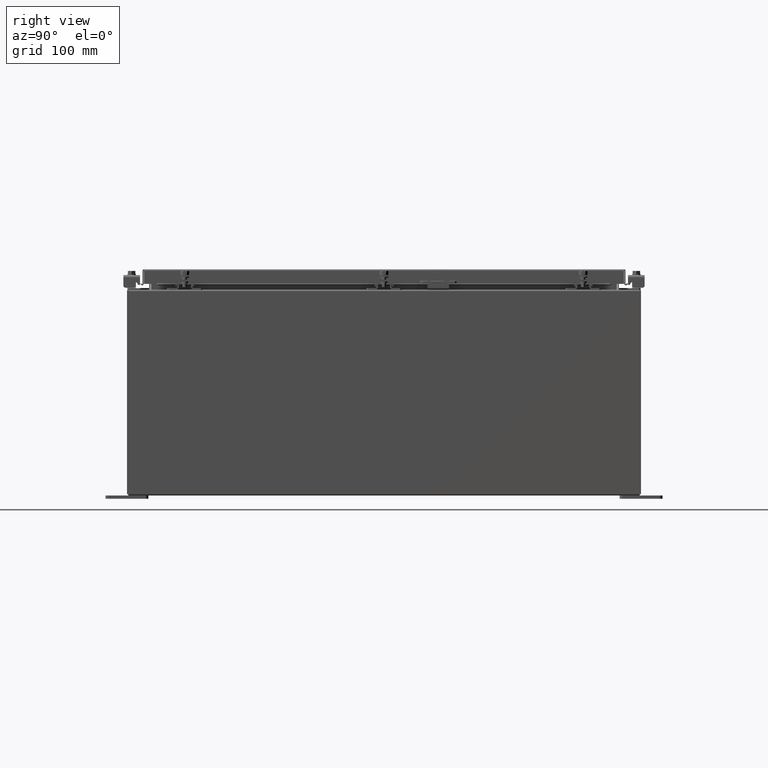
[diagram: clean part render]
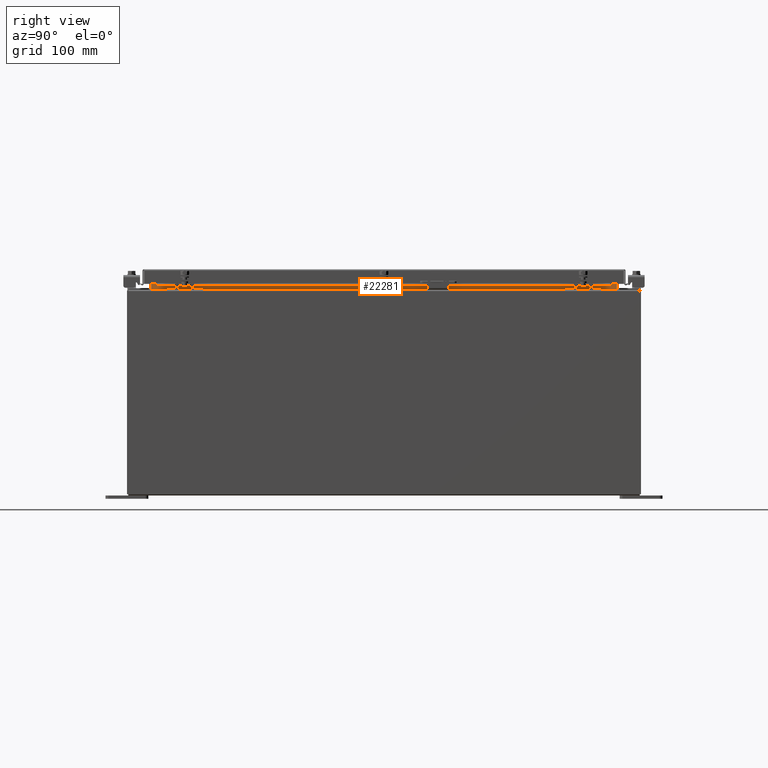
[diagram: same view with one face highlighted and labeled with its STEP entity id]
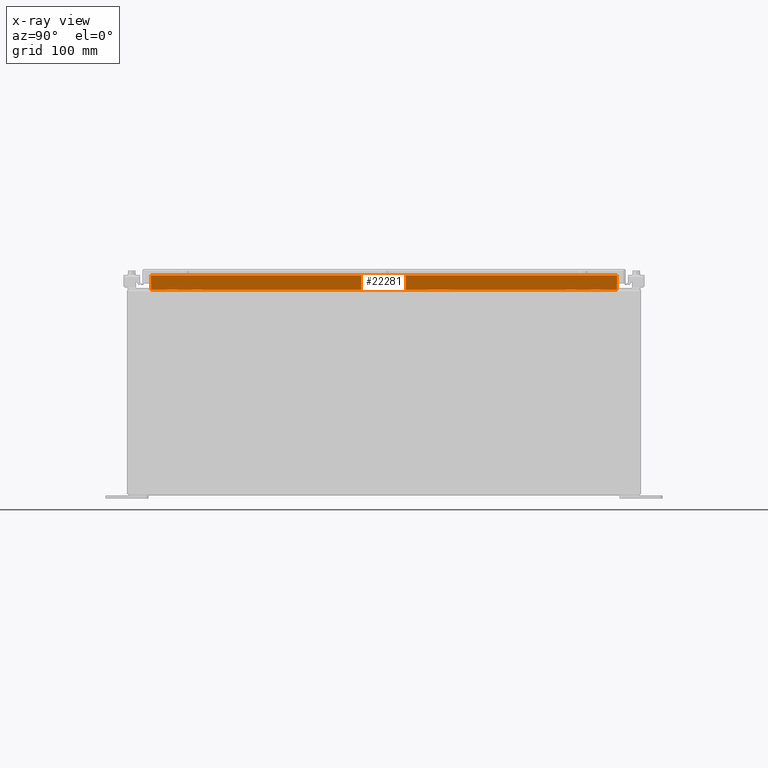
[diagram: x-ray of the same camera — body ghosted, the highlighted face saturated]
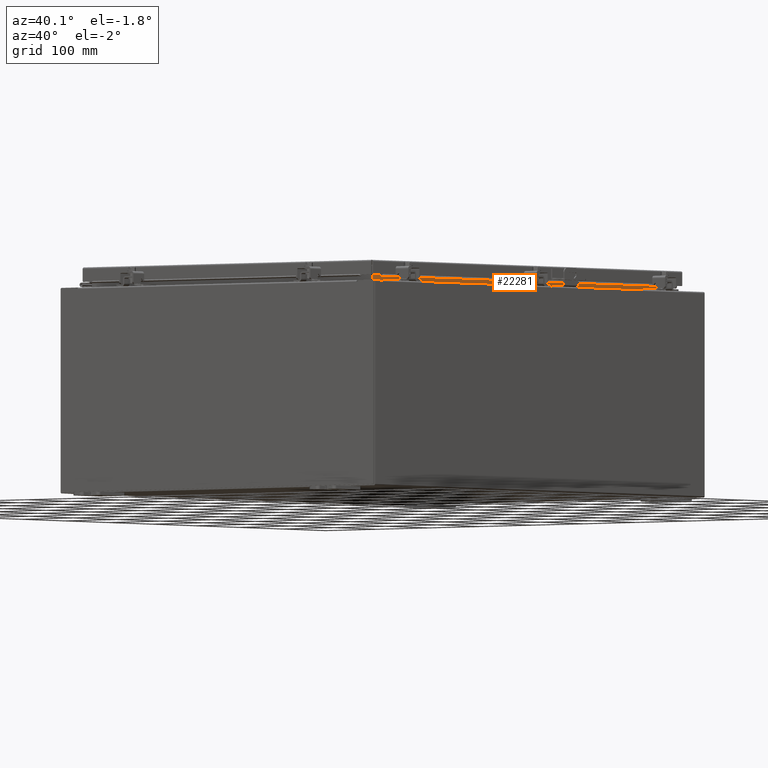
[diagram: same view with one face highlighted and labeled with its STEP entity id]
A machine part, right view. The second image highlights one B-rep face of the part: STEP entity #22281.
The next image is the same camera in x-ray: the body ghosted, the highlighted face saturated — about 0% of this face is hidden behind the body in this view.
A second angle (auxiliary view) of the same face is appended — the face is thin or edge-on in the first view.
In plain terms, the highlighted planar face has unit normal (1, 0, -0).
Its self-contained STEP definition (entity closure, byte-faithful):
#462 = VECTOR ( 'NONE', #33229, 39.37007874015748100 ) ;
#579 = LINE ( 'NONE', #26493, #15236 ) ;
#3453 = ORIENTED_EDGE ( 'NONE', *, *, #5623, .F. ) ;
#4787 = LINE ( 'NONE', #16572, #34537 ) ;
#5623 = EDGE_CURVE ( 'NONE', #22881, #27607, #579, .T. ) ;
#6933 = AXIS2_PLACEMENT_3D ( 'NONE', #18689, #30149, #12998 ) ;
#7053 = EDGE_CURVE ( 'NONE', #9956, #34329, #33474, .T. ) ;
#7296 = CARTESIAN_POINT ( 'NONE',  ( 10.69970000000003900, 13.59374999999999800, 11.92530000000000900 ) ) ;
#7375 = LINE ( 'NONE', #7296, #462 ) ;
#9956 = VERTEX_POINT ( 'NONE', #23888 ) ;
#10067 = PLANE ( 'NONE',  #6933 ) ;
#12998 = DIRECTION ( 'NONE',  ( -4.723826639860386500E-015, 0.0000000000000000000, -1.000000000000000000 ) ) ;
#15236 = VECTOR ( 'NONE', #27218, 39.37007874015748100 ) ;
#15280 = ORIENTED_EDGE ( 'NONE', *, *, #7053, .F. ) ;
#16572 = CARTESIAN_POINT ( 'NONE',  ( 10.69970000000004300, -13.59374999999999800, 12.85060000000001100 ) ) ;
#17531 = ORIENTED_EDGE ( 'NONE', *, *, #26572, .F. ) ;
#18689 = CARTESIAN_POINT ( 'NONE',  ( 10.69969999999998200, 0.0000000000000000000, -5.054352789851408700E-014 ) ) ;
#21760 = CARTESIAN_POINT ( 'NONE',  ( 10.69970000000003900, 13.59375000000000000, 11.93830000000001200 ) ) ;
#21815 = EDGE_CURVE ( 'NONE', #27607, #9956, #4787, .T. ) ;
#22281 = ADVANCED_FACE ( 'NONE', ( #23714 ), #10067, .T. ) ;
#22881 = VERTEX_POINT ( 'NONE', #21760 ) ;
#22919 = DIRECTION ( 'NONE',  ( 0.0000000000000000000, 1.000000000000000000, 0.0000000000000000000 ) ) ;
#23034 = CARTESIAN_POINT ( 'NONE',  ( 10.69970000000004300, -13.59374999999999300, 12.76290000000001100 ) ) ;
#23714 = FACE_OUTER_BOUND ( 'NONE', #37384, .T. ) ;
#23888 = CARTESIAN_POINT ( 'NONE',  ( 10.69970000000004300, -13.59374999999999800, 12.76290000000001100 ) ) ;
#24642 = ORIENTED_EDGE ( 'NONE', *, *, #21815, .F. ) ;
#26493 = CARTESIAN_POINT ( 'NONE',  ( 10.69970000000004100, 13.59374999999999800, 11.93830000000000900 ) ) ;
#26572 = EDGE_CURVE ( 'NONE', #34329, #22881, #7375, .T. ) ;
#27218 = DIRECTION ( 'NONE',  ( 8.038541222736223700E-017, -1.000000000000000000, 1.607708244547244700E-016 ) ) ;
#27607 = VERTEX_POINT ( 'NONE', #36591 ) ;
#30149 = DIRECTION ( 'NONE',  ( 1.000000000000000000, 0.0000000000000000000, -4.723826639860386500E-015 ) ) ;
#33229 = DIRECTION ( 'NONE',  ( -4.723826639860386500E-015, -0.0000000000000000000, -1.000000000000000000 ) ) ;
#33474 = LINE ( 'NONE', #23034, #34384 ) ;
#34329 = VERTEX_POINT ( 'NONE', #37256 ) ;
#34384 = VECTOR ( 'NONE', #22919, 39.37007874015748100 ) ;
#34537 = VECTOR ( 'NONE', #36759, 39.37007874015748100 ) ;
#36591 = CARTESIAN_POINT ( 'NONE',  ( 10.69970000000003900, -13.59375000000000000, 11.93830000000001200 ) ) ;
#36759 = DIRECTION ( 'NONE',  ( 4.723826639860397600E-015, -0.0000000000000000000, 1.000000000000000000 ) ) ;
#37256 = CARTESIAN_POINT ( 'NONE',  ( 10.69970000000004300, 13.59374999999999300, 12.76290000000001100 ) ) ;
#37384 = EDGE_LOOP ( 'NONE', ( #17531, #15280, #24642, #3453 ) ) ;